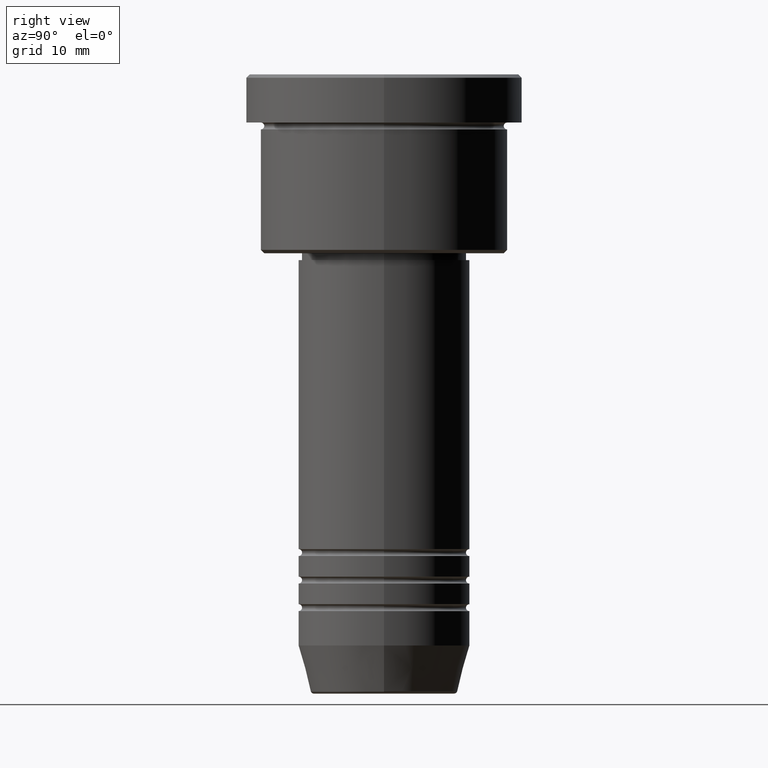
[diagram: clean part render]
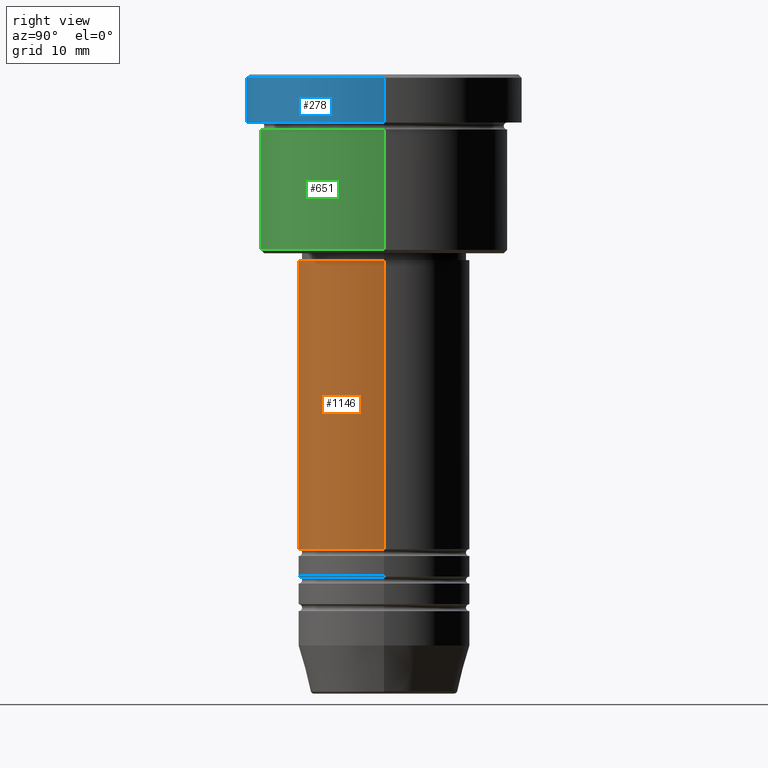
[diagram: same view with three faces highlighted in distinct colors, each labeled with its STEP entity id]
A machine part, right view with three faces highlighted in distinct colors.
Their STEP definitions:

[orange] entity #1146 — the highlighted cylindrical surface (partial cylindrical patch) has radius 12.5 mm, axis along (-0, -0, 1).
#7 = CARTESIAN_POINT ( 'NONE',  ( -12.50000000000000000, 1.530808498934191521E-15, 0.000000000000000000 ) ) ;
#64 = CARTESIAN_POINT ( 'NONE',  ( -12.50000000000000000, 1.530808498934191521E-15, -68.99999999999997158 ) ) ;
#102 = DIRECTION ( 'NONE',  ( -0.000000000000000000, -0.000000000000000000, 1.000000000000000000 ) ) ;
#106 = ORIENTED_EDGE ( 'NONE', *, *, #1124, .F. ) ;
#185 = VECTOR ( 'NONE', #102, 1000.000000000000000 ) ;
#199 = CYLINDRICAL_SURFACE ( 'NONE', #544, 12.50000000000000000 ) ;
#209 = CARTESIAN_POINT ( 'NONE',  ( 12.50000000000000000, 0.000000000000000000, -26.99999999999999645 ) ) ;
#295 = DIRECTION ( 'NONE',  ( -0.000000000000000000, -0.000000000000000000, 1.000000000000000000 ) ) ;
#358 = DIRECTION ( 'NONE',  ( 1.000000000000000000, 0.000000000000000000, 0.000000000000000000 ) ) ;
#372 = EDGE_LOOP ( 'NONE', ( #106, #894, #477, #821 ) ) ;
#381 = FACE_OUTER_BOUND ( 'NONE', #372, .T. ) ;
#397 = CIRCLE ( 'NONE', #1051, 12.50000000000000000 ) ;
#456 = VERTEX_POINT ( 'NONE', #64 ) ;
#465 = DIRECTION ( 'NONE',  ( -0.000000000000000000, -0.000000000000000000, 1.000000000000000000 ) ) ;
#476 = LINE ( 'NONE', #1102, #690 ) ;
#477 = ORIENTED_EDGE ( 'NONE', *, *, #707, .T. ) ;
#507 = CIRCLE ( 'NONE', #1050, 12.50000000000000000 ) ;
#537 = EDGE_CURVE ( 'NONE', #456, #808, #507, .T. ) ;
#544 = AXIS2_PLACEMENT_3D ( 'NONE', #549, #465, #753 ) ;
#549 = CARTESIAN_POINT ( 'NONE',  ( 0.000000000000000000, 0.000000000000000000, 0.000000000000000000 ) ) ;
#633 = DIRECTION ( 'NONE',  ( -0.000000000000000000, -0.000000000000000000, 1.000000000000000000 ) ) ;
#684 = CARTESIAN_POINT ( 'NONE',  ( -12.50000000000000000, 1.530808498934191521E-15, -26.99999999999999645 ) ) ;
#690 = VECTOR ( 'NONE', #295, 1000.000000000000000 ) ;
#707 = EDGE_CURVE ( 'NONE', #808, #796, #476, .T. ) ;
#719 = CARTESIAN_POINT ( 'NONE',  ( 0.000000000000000000, 0.000000000000000000, -68.99999999999997158 ) ) ;
#753 = DIRECTION ( 'NONE',  ( 1.000000000000000000, 0.000000000000000000, 0.000000000000000000 ) ) ;
#795 = DIRECTION ( 'NONE',  ( 1.000000000000000000, 0.000000000000000000, 0.000000000000000000 ) ) ;
#796 = VERTEX_POINT ( 'NONE', #209 ) ;
#803 = CARTESIAN_POINT ( 'NONE',  ( 0.000000000000000000, 0.000000000000000000, -26.99999999999999645 ) ) ;
#808 = VERTEX_POINT ( 'NONE', #842 ) ;
#821 = ORIENTED_EDGE ( 'NONE', *, *, #1111, .F. ) ;
#842 = CARTESIAN_POINT ( 'NONE',  ( 12.50000000000000000, 0.000000000000000000, -68.99999999999997158 ) ) ;
#879 = VERTEX_POINT ( 'NONE', #684 ) ;
#894 = ORIENTED_EDGE ( 'NONE', *, *, #537, .T. ) ;
#1050 = AXIS2_PLACEMENT_3D ( 'NONE', #719, #633, #795 ) ;
#1051 = AXIS2_PLACEMENT_3D ( 'NONE', #803, #1164, #358 ) ;
#1096 = LINE ( 'NONE', #7, #185 ) ;
#1102 = CARTESIAN_POINT ( 'NONE',  ( 12.50000000000000000, 0.000000000000000000, 0.000000000000000000 ) ) ;
#1111 = EDGE_CURVE ( 'NONE', #879, #796, #397, .T. ) ;
#1124 = EDGE_CURVE ( 'NONE', #456, #879, #1096, .T. ) ;
#1146 = ADVANCED_FACE ( 'NONE', ( #381 ), #199, .T. ) ;
#1164 = DIRECTION ( 'NONE',  ( -0.000000000000000000, -0.000000000000000000, 1.000000000000000000 ) ) ;

[blue] entity #278 — the highlighted cylindrical surface (partial cylindrical patch) has radius 20 mm, axis along (-0, -0, 1).
#20 = CARTESIAN_POINT ( 'NONE',  ( 0.000000000000000000, 0.000000000000000000, 0.000000000000000000 ) ) ;
#38 = DIRECTION ( 'NONE',  ( -0.000000000000000000, -0.000000000000000000, 1.000000000000000000 ) ) ;
#58 = CYLINDRICAL_SURFACE ( 'NONE', #825, 20.00000000000000000 ) ;
#119 = VERTEX_POINT ( 'NONE', #1015 ) ;
#133 = DIRECTION ( 'NONE',  ( -0.000000000000000000, -0.000000000000000000, 1.000000000000000000 ) ) ;
#161 = ORIENTED_EDGE ( 'NONE', *, *, #671, .F. ) ;
#181 = AXIS2_PLACEMENT_3D ( 'NONE', #373, #1094, #835 ) ;
#190 = CARTESIAN_POINT ( 'NONE',  ( -20.00000000000000000, 2.449293598294706513E-15, 0.000000000000000000 ) ) ;
#191 = VERTEX_POINT ( 'NONE', #388 ) ;
#267 = CARTESIAN_POINT ( 'NONE',  ( 20.00000000000000000, 0.000000000000000000, 0.000000000000000000 ) ) ;
#278 = ADVANCED_FACE ( 'NONE', ( #871 ), #58, .T. ) ;
#320 = EDGE_CURVE ( 'NONE', #191, #720, #330, .T. ) ;
#330 = CIRCLE ( 'NONE', #181, 20.00000000000000000 ) ;
#344 = DIRECTION ( 'NONE',  ( -0.000000000000000000, -0.000000000000000000, 1.000000000000000000 ) ) ;
#373 = CARTESIAN_POINT ( 'NONE',  ( 0.000000000000000000, 0.000000000000000000, -0.4999999999999831246 ) ) ;
#379 = VERTEX_POINT ( 'NONE', #693 ) ;
#388 = CARTESIAN_POINT ( 'NONE',  ( 20.00000000000000000, 0.000000000000000000, -0.4999999999999831246 ) ) ;
#430 = EDGE_CURVE ( 'NONE', #119, #379, #471, .T. ) ;
#436 = ORIENTED_EDGE ( 'NONE', *, *, #516, .T. ) ;
#471 = CIRCLE ( 'NONE', #861, 20.00000000000000000 ) ;
#516 = EDGE_CURVE ( 'NONE', #379, #191, #1068, .T. ) ;
#636 = ORIENTED_EDGE ( 'NONE', *, *, #430, .T. ) ;
#642 = LINE ( 'NONE', #190, #806 ) ;
#671 = EDGE_CURVE ( 'NONE', #119, #720, #642, .T. ) ;
#676 = DIRECTION ( 'NONE',  ( 1.000000000000000000, 0.000000000000000000, 0.000000000000000000 ) ) ;
#693 = CARTESIAN_POINT ( 'NONE',  ( 20.00000000000000000, 0.000000000000000000, -6.999999999999995559 ) ) ;
#699 = DIRECTION ( 'NONE',  ( 1.000000000000000000, 0.000000000000000000, 0.000000000000000000 ) ) ;
#720 = VERTEX_POINT ( 'NONE', #1098 ) ;
#731 = VECTOR ( 'NONE', #344, 1000.000000000000000 ) ;
#806 = VECTOR ( 'NONE', #918, 1000.000000000000000 ) ;
#825 = AXIS2_PLACEMENT_3D ( 'NONE', #20, #38, #676 ) ;
#835 = DIRECTION ( 'NONE',  ( 1.000000000000000000, 0.000000000000000000, 0.000000000000000000 ) ) ;
#839 = EDGE_LOOP ( 'NONE', ( #161, #636, #436, #949 ) ) ;
#861 = AXIS2_PLACEMENT_3D ( 'NONE', #956, #133, #699 ) ;
#871 = FACE_OUTER_BOUND ( 'NONE', #839, .T. ) ;
#918 = DIRECTION ( 'NONE',  ( -0.000000000000000000, -0.000000000000000000, 1.000000000000000000 ) ) ;
#949 = ORIENTED_EDGE ( 'NONE', *, *, #320, .T. ) ;
#956 = CARTESIAN_POINT ( 'NONE',  ( 0.000000000000000000, 0.000000000000000000, -6.999999999999995559 ) ) ;
#1015 = CARTESIAN_POINT ( 'NONE',  ( -20.00000000000000000, 2.449293598294706513E-15, -6.999999999999995559 ) ) ;
#1068 = LINE ( 'NONE', #267, #731 ) ;
#1094 = DIRECTION ( 'NONE',  ( 0.000000000000000000, 0.000000000000000000, -1.000000000000000000 ) ) ;
#1098 = CARTESIAN_POINT ( 'NONE',  ( -20.00000000000000000, 2.449293598294706513E-15, -0.4999999999999831246 ) ) ;

[green] entity #651 — the highlighted cylindrical surface (partial cylindrical patch) has radius 18 mm, axis along (-0, -0, 1).
#25 = AXIS2_PLACEMENT_3D ( 'NONE', #892, #716, #159 ) ;
#95 = EDGE_CURVE ( 'NONE', #895, #800, #498, .T. ) ;
#118 = VERTEX_POINT ( 'NONE', #371 ) ;
#159 = DIRECTION ( 'NONE',  ( 1.000000000000000000, 0.000000000000000000, 0.000000000000000000 ) ) ;
#205 = VECTOR ( 'NONE', #967, 1000.000000000000000 ) ;
#213 = ORIENTED_EDGE ( 'NONE', *, *, #582, .T. ) ;
#225 = VERTEX_POINT ( 'NONE', #482 ) ;
#255 = DIRECTION ( 'NONE',  ( -0.000000000000000000, -0.000000000000000000, 1.000000000000000000 ) ) ;
#369 = FACE_OUTER_BOUND ( 'NONE', #455, .T. ) ;
#371 = CARTESIAN_POINT ( 'NONE',  ( 18.00000000000000000, 0.000000000000000000, -7.999999999999996447 ) ) ;
#376 = AXIS2_PLACEMENT_3D ( 'NONE', #396, #551, #929 ) ;
#396 = CARTESIAN_POINT ( 'NONE',  ( 0.000000000000000000, 0.000000000000000000, -7.999999999999996447 ) ) ;
#447 = CIRCLE ( 'NONE', #751, 18.00000000000000000 ) ;
#455 = EDGE_LOOP ( 'NONE', ( #568, #213, #792, #626 ) ) ;
#482 = CARTESIAN_POINT ( 'NONE',  ( 18.00000000000000000, 0.000000000000000000, -25.50000000000001066 ) ) ;
#488 = CARTESIAN_POINT ( 'NONE',  ( -18.00000000000000000, 2.204364238465235428E-15, -7.999999999999996447 ) ) ;
#498 = LINE ( 'NONE', #1116, #560 ) ;
#534 = CARTESIAN_POINT ( 'NONE',  ( 0.000000000000000000, 0.000000000000000000, -25.50000000000001066 ) ) ;
#551 = DIRECTION ( 'NONE',  ( -0.000000000000000000, -0.000000000000000000, 1.000000000000000000 ) ) ;
#560 = VECTOR ( 'NONE', #1107, 1000.000000000000000 ) ;
#568 = ORIENTED_EDGE ( 'NONE', *, *, #95, .F. ) ;
#582 = EDGE_CURVE ( 'NONE', #895, #225, #447, .T. ) ;
#626 = ORIENTED_EDGE ( 'NONE', *, *, #700, .F. ) ;
#651 = ADVANCED_FACE ( 'NONE', ( #369 ), #709, .T. ) ;
#689 = LINE ( 'NONE', #1052, #205 ) ;
#700 = EDGE_CURVE ( 'NONE', #800, #118, #999, .T. ) ;
#709 = CYLINDRICAL_SURFACE ( 'NONE', #25, 18.00000000000000000 ) ;
#716 = DIRECTION ( 'NONE',  ( -0.000000000000000000, -0.000000000000000000, 1.000000000000000000 ) ) ;
#751 = AXIS2_PLACEMENT_3D ( 'NONE', #534, #255, #898 ) ;
#792 = ORIENTED_EDGE ( 'NONE', *, *, #914, .T. ) ;
#800 = VERTEX_POINT ( 'NONE', #488 ) ;
#892 = CARTESIAN_POINT ( 'NONE',  ( 0.000000000000000000, 0.000000000000000000, 0.000000000000000000 ) ) ;
#895 = VERTEX_POINT ( 'NONE', #1046 ) ;
#898 = DIRECTION ( 'NONE',  ( -1.000000000000000000, 0.000000000000000000, 0.000000000000000000 ) ) ;
#914 = EDGE_CURVE ( 'NONE', #225, #118, #689, .T. ) ;
#929 = DIRECTION ( 'NONE',  ( 1.000000000000000000, 0.000000000000000000, 0.000000000000000000 ) ) ;
#967 = DIRECTION ( 'NONE',  ( -0.000000000000000000, -0.000000000000000000, 1.000000000000000000 ) ) ;
#999 = CIRCLE ( 'NONE', #376, 18.00000000000000000 ) ;
#1046 = CARTESIAN_POINT ( 'NONE',  ( -18.00000000000000000, 2.204364238465235428E-15, -25.50000000000001066 ) ) ;
#1052 = CARTESIAN_POINT ( 'NONE',  ( 18.00000000000000000, 0.000000000000000000, 0.000000000000000000 ) ) ;
#1107 = DIRECTION ( 'NONE',  ( -0.000000000000000000, -0.000000000000000000, 1.000000000000000000 ) ) ;
#1116 = CARTESIAN_POINT ( 'NONE',  ( -18.00000000000000000, 2.204364238465235428E-15, 0.000000000000000000 ) ) ;